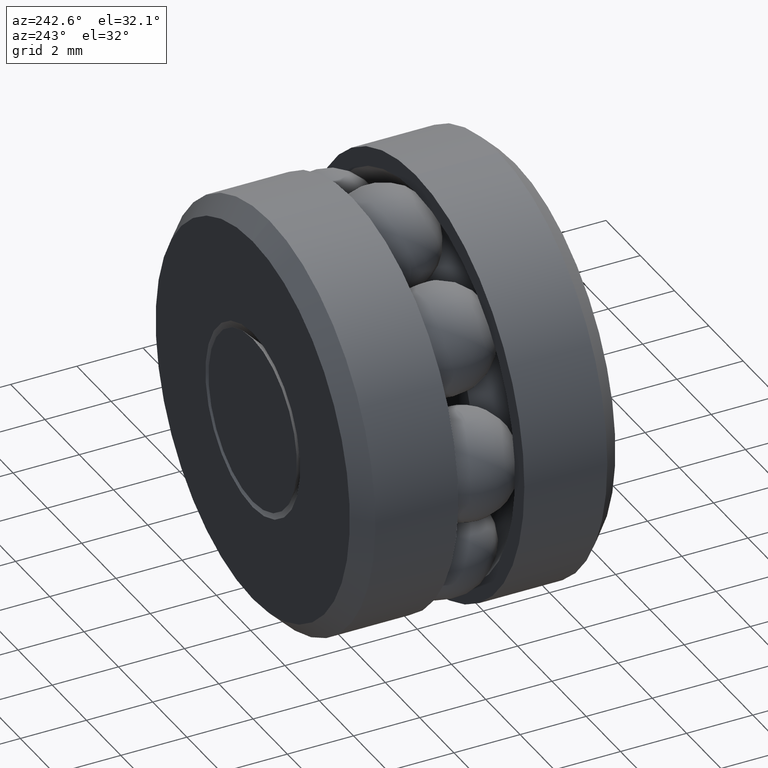
[diagram: clean part render]
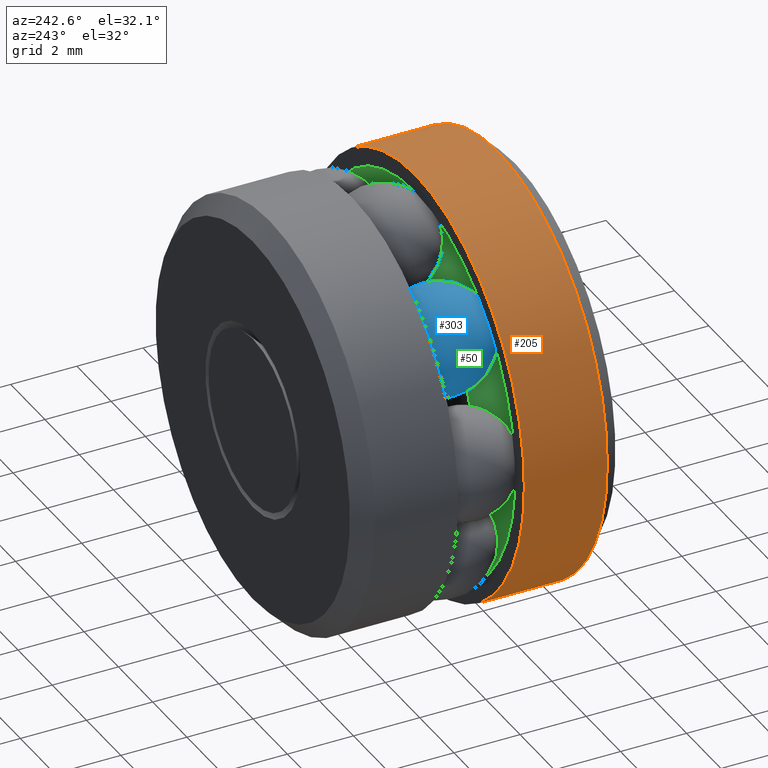
[diagram: same view with three faces highlighted in distinct colors, each labeled with its STEP entity id]
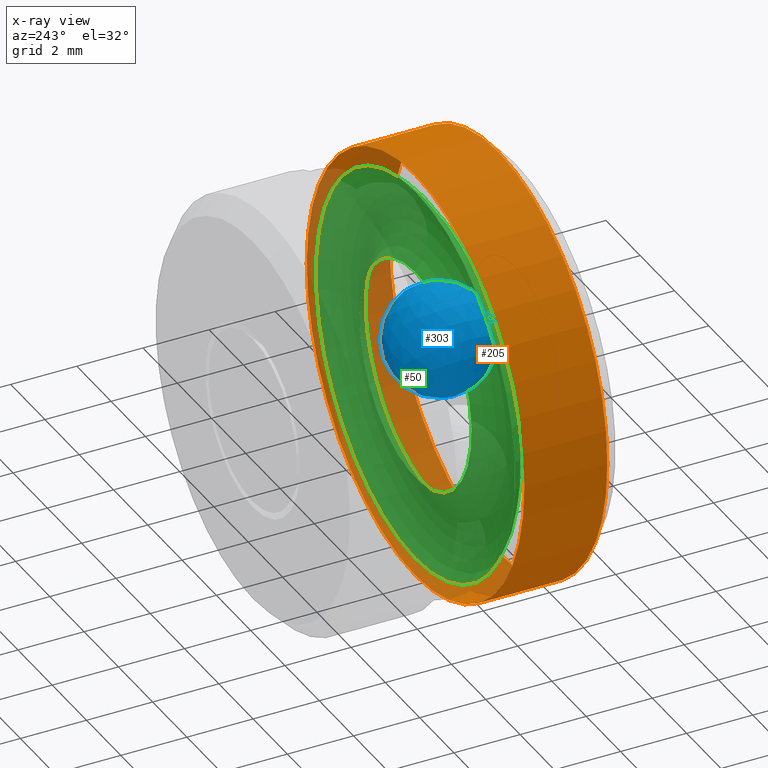
[diagram: x-ray of the same camera — body ghosted, the three highlighted faces saturated]
A machine part, auxiliary view with three faces highlighted in distinct colors.
The next image is the same camera in x-ray (body ghosted, the three faces saturated) — at least one of them is partly hidden behind the body in this view.
Their STEP definitions:

[orange] entity #205 — the highlighted cylindrical surface (bore or boss wall) has radius 6.35 mm, axis along (-0, 1, -0).
#22 = DIRECTION ( 'NONE',  ( -0.0000000000000000000, 1.000000000000000000, -0.0000000000000000000 ) ) ;
#28 = CARTESIAN_POINT ( 'NONE',  ( 0.0000000000000000000, 0.0000000000000000000, 0.0000000000000000000 ) ) ;
#29 = DIRECTION ( 'NONE',  ( 0.0000000000000000000, 0.0000000000000000000, 1.000000000000000000 ) ) ;
#61 = DIRECTION ( 'NONE',  ( 0.0000000000000000000, 0.0000000000000000000, 1.000000000000000000 ) ) ;
#66 = DIRECTION ( 'NONE',  ( -0.0000000000000000000, 1.000000000000000000, -0.0000000000000000000 ) ) ;
#80 = CARTESIAN_POINT ( 'NONE',  ( 0.0000000000000000000, 0.02000000000000017400, 0.0000000000000000000 ) ) ;
#126 = AXIS2_PLACEMENT_3D ( 'NONE', #28, #22, #29 ) ;
#141 = EDGE_CURVE ( 'NONE', #256, #256, #558, .T. ) ;
#160 = VERTEX_POINT ( 'NONE', #474 ) ;
#161 = DIRECTION ( 'NONE',  ( 0.0000000000000000000, 0.0000000000000000000, 1.000000000000000000 ) ) ;
#169 = DIRECTION ( 'NONE',  ( -0.0000000000000000000, 1.000000000000000000, -0.0000000000000000000 ) ) ;
#170 = CARTESIAN_POINT ( 'NONE',  ( 0.0000000000000000000, 0.1187499999999999700, 0.0000000000000000000 ) ) ;
#205 = ADVANCED_FACE ( 'NONE', ( #444, #265 ), #213, .T. ) ;
#210 = AXIS2_PLACEMENT_3D ( 'NONE', #170, #169, #161 ) ;
#212 = ORIENTED_EDGE ( 'NONE', *, *, #141, .F. ) ;
#213 = CYLINDRICAL_SURFACE ( 'NONE', #126, 0.2500000000000000000 ) ;
#256 = VERTEX_POINT ( 'NONE', #535 ) ;
#265 = FACE_OUTER_BOUND ( 'NONE', #432, .T. ) ;
#326 = ORIENTED_EDGE ( 'NONE', *, *, #459, .T. ) ;
#412 = AXIS2_PLACEMENT_3D ( 'NONE', #80, #66, #61 ) ;
#432 = EDGE_LOOP ( 'NONE', ( #212 ) ) ;
#434 = EDGE_LOOP ( 'NONE', ( #326 ) ) ;
#444 = FACE_OUTER_BOUND ( 'NONE', #434, .T. ) ;
#459 = EDGE_CURVE ( 'NONE', #160, #160, #526, .T. ) ;
#474 = CARTESIAN_POINT ( 'NONE',  ( 0.0000000000000000000, 0.02000000000000017400, 0.2500000000000000000 ) ) ;
#526 = CIRCLE ( 'NONE', #412, 0.2500000000000000000 ) ;
#535 = CARTESIAN_POINT ( 'NONE',  ( 0.0000000000000000000, 0.1187499999999999700, 0.2500000000000000000 ) ) ;
#558 = CIRCLE ( 'NONE', #210, 0.2500000000000000000 ) ;

[blue] entity #303 — the highlighted spherical surface has radius 1.5875 mm.
#26 = AXIS2_PLACEMENT_3D ( 'NONE', #554, #510, #269 ) ;
#143 = SPHERICAL_SURFACE ( 'NONE', #26, 0.06250000000000001400 ) ;
#269 = DIRECTION ( 'NONE',  ( 0.7071067811865462400, 0.0000000000000000000, -0.7071067811865486800 ) ) ;
#303 = ADVANCED_FACE ( 'NONE', ( ), #143, .T. ) ;
#510 = DIRECTION ( 'NONE',  ( -0.7071067811865486800, 0.0000000000000000000, -0.7071067811865462400 ) ) ;
#554 = CARTESIAN_POINT ( 'NONE',  ( -0.1262185604417984900, 0.1562500000000000000, 0.1262185604417989400 ) ) ;

[green] entity #50 — the highlighted toroidal blend (fillet) surface has major radius 4.5339 mm and minor (blend) radius 1.5875 mm.
#8 = ORIENTED_EDGE ( 'NONE', *, *, #428, .T. ) ;
#9 = EDGE_LOOP ( 'NONE', ( #8 ) ) ;
#33 = VERTEX_POINT ( 'NONE', #483 ) ;
#42 = CIRCLE ( 'NONE', #454, 0.1284999999999999500 ) ;
#50 = ADVANCED_FACE ( 'NONE', ( #219, #190 ), #216, .F. ) ;
#74 = CARTESIAN_POINT ( 'NONE',  ( 0.0000000000000000000, 0.1187499999999999900, 0.0000000000000000000 ) ) ;
#99 = ORIENTED_EDGE ( 'NONE', *, *, #383, .F. ) ;
#112 = DIRECTION ( 'NONE',  ( -0.0000000000000000000, 1.000000000000000000, -0.0000000000000000000 ) ) ;
#190 = FACE_OUTER_BOUND ( 'NONE', #505, .T. ) ;
#216 = TOROIDAL_SURFACE ( 'NONE', #278, 0.1784999999999999600, 0.06250000000000001400 ) ;
#219 = FACE_OUTER_BOUND ( 'NONE', #9, .T. ) ;
#278 = AXIS2_PLACEMENT_3D ( 'NONE', #285, #368, #332 ) ;
#285 = CARTESIAN_POINT ( 'NONE',  ( 0.0000000000000000000, 0.1562500000000000000, 0.0000000000000000000 ) ) ;
#297 = CIRCLE ( 'NONE', #560, 0.2284999999999999500 ) ;
#332 = DIRECTION ( 'NONE',  ( 0.0000000000000000000, 0.0000000000000000000, 1.000000000000000000 ) ) ;
#368 = DIRECTION ( 'NONE',  ( -0.0000000000000000000, 1.000000000000000000, -0.0000000000000000000 ) ) ;
#383 = EDGE_CURVE ( 'NONE', #437, #437, #42, .T. ) ;
#421 = DIRECTION ( 'NONE',  ( 0.0000000000000000000, 0.0000000000000000000, 1.000000000000000000 ) ) ;
#428 = EDGE_CURVE ( 'NONE', #33, #33, #297, .T. ) ;
#437 = VERTEX_POINT ( 'NONE', #493 ) ;
#454 = AXIS2_PLACEMENT_3D ( 'NONE', #74, #112, #421 ) ;
#458 = DIRECTION ( 'NONE',  ( 0.0000000000000000000, 0.0000000000000000000, 1.000000000000000000 ) ) ;
#483 = CARTESIAN_POINT ( 'NONE',  ( 0.0000000000000000000, 0.1187499999999999800, 0.2284999999999999500 ) ) ;
#493 = CARTESIAN_POINT ( 'NONE',  ( 0.0000000000000000000, 0.1187499999999999900, 0.1284999999999999500 ) ) ;
#505 = EDGE_LOOP ( 'NONE', ( #99 ) ) ;
#549 = DIRECTION ( 'NONE',  ( -0.0000000000000000000, 1.000000000000000000, -0.0000000000000000000 ) ) ;
#560 = AXIS2_PLACEMENT_3D ( 'NONE', #561, #549, #458 ) ;
#561 = CARTESIAN_POINT ( 'NONE',  ( 0.0000000000000000000, 0.1187499999999999800, 0.0000000000000000000 ) ) ;